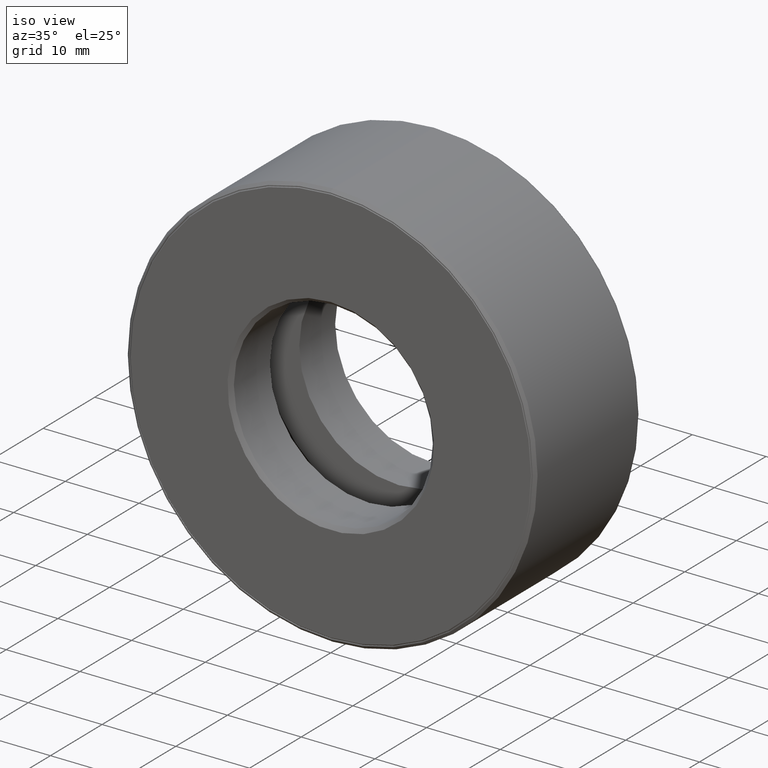
[diagram: clean part render]
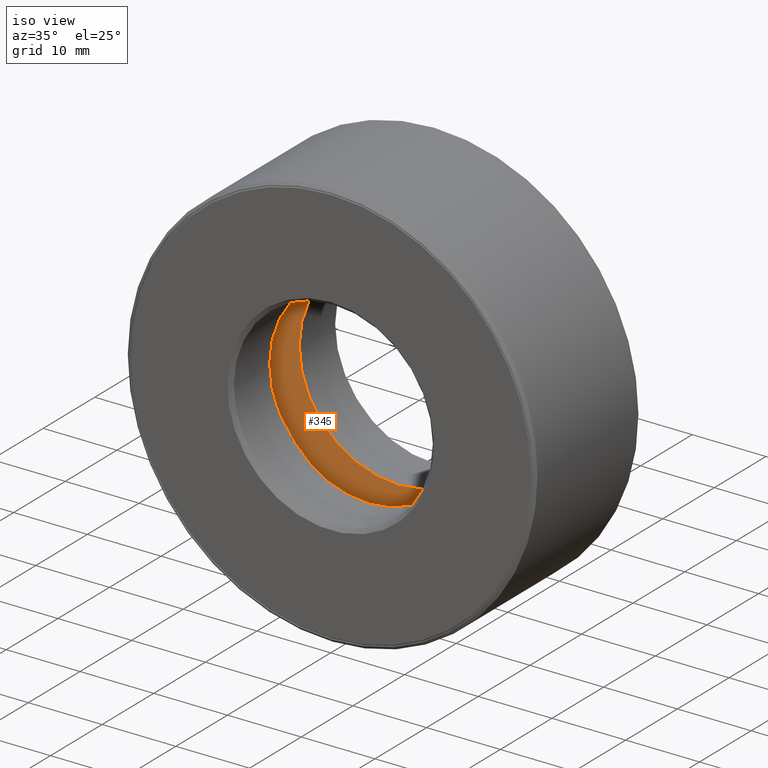
[diagram: same view with one face highlighted and labeled with its STEP entity id]
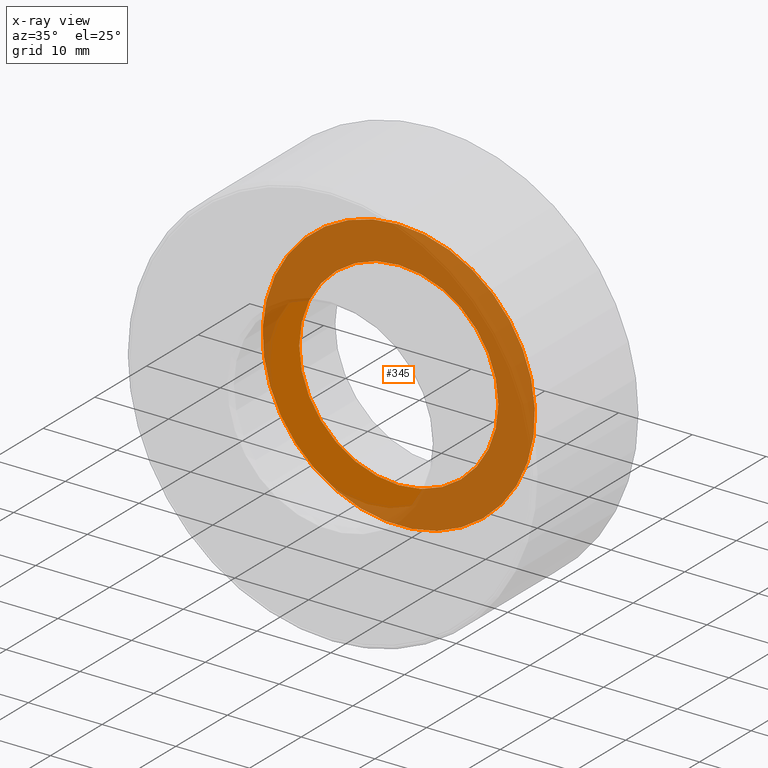
[diagram: x-ray of the same camera — body ghosted, the highlighted face saturated]
A machine part, iso view. The second image highlights one B-rep face of the part: STEP entity #345.
The next image is the same camera in x-ray: the body ghosted, the highlighted face saturated — about 73% of this face is hidden behind the body in this view.
In plain terms, the highlighted planar face has unit normal (0, -1, 0).
Its self-contained STEP definition (entity closure, byte-faithful):
#3 = CARTESIAN_POINT ( 'NONE',  ( 0.0000000000000000000, 0.5187499999999999300, 0.7272500000000000600 ) ) ;
#11 = ORIENTED_EDGE ( 'NONE', *, *, #580, .F. ) ;
#43 = ORIENTED_EDGE ( 'NONE', *, *, #248, .T. ) ;
#49 = FACE_OUTER_BOUND ( 'NONE', #311, .T. ) ;
#162 = CIRCLE ( 'NONE', #371, 0.7272500000000000600 ) ;
#164 = DIRECTION ( 'NONE',  ( 0.0000000000000000000, -0.0000000000000000000, -1.000000000000000000 ) ) ;
#200 = FACE_BOUND ( 'NONE', #230, .T. ) ;
#230 = EDGE_LOOP ( 'NONE', ( #43 ) ) ;
#238 = CARTESIAN_POINT ( 'NONE',  ( 0.0000000000000000000, 0.5187499999999999300, 0.0000000000000000000 ) ) ;
#239 = VERTEX_POINT ( 'NONE', #3 ) ;
#248 = EDGE_CURVE ( 'NONE', #294, #294, #257, .T. ) ;
#257 = CIRCLE ( 'NONE', #368, 0.5312500000000000000 ) ;
#263 = CARTESIAN_POINT ( 'NONE',  ( 0.0000000000000000000, 0.5187500000000000400, 0.0000000000000000000 ) ) ;
#266 = DIRECTION ( 'NONE',  ( 0.0000000000000000000, 0.0000000000000000000, 1.000000000000000000 ) ) ;
#291 = DIRECTION ( 'NONE',  ( -0.0000000000000000000, 1.000000000000000000, -0.0000000000000000000 ) ) ;
#294 = VERTEX_POINT ( 'NONE', #308 ) ;
#308 = CARTESIAN_POINT ( 'NONE',  ( 0.0000000000000000000, 0.5187500000000000400, 0.5312500000000000000 ) ) ;
#310 = PLANE ( 'NONE',  #441 ) ;
#311 = EDGE_LOOP ( 'NONE', ( #11 ) ) ;
#345 = ADVANCED_FACE ( 'NONE', ( #200, #49 ), #310, .T. ) ;
#361 = CARTESIAN_POINT ( 'NONE',  ( -1.807584370807828400E-016, 0.5187500000000000400, 0.0000000000000000000 ) ) ;
#368 = AXIS2_PLACEMENT_3D ( 'NONE', #263, #577, #266 ) ;
#371 = AXIS2_PLACEMENT_3D ( 'NONE', #238, #291, #561 ) ;
#441 = AXIS2_PLACEMENT_3D ( 'NONE', #361, #444, #164 ) ;
#444 = DIRECTION ( 'NONE',  ( 0.0000000000000000000, -1.000000000000000000, 0.0000000000000000000 ) ) ;
#561 = DIRECTION ( 'NONE',  ( 0.0000000000000000000, 0.0000000000000000000, 1.000000000000000000 ) ) ;
#577 = DIRECTION ( 'NONE',  ( -0.0000000000000000000, 1.000000000000000000, -0.0000000000000000000 ) ) ;
#580 = EDGE_CURVE ( 'NONE', #239, #239, #162, .T. ) ;